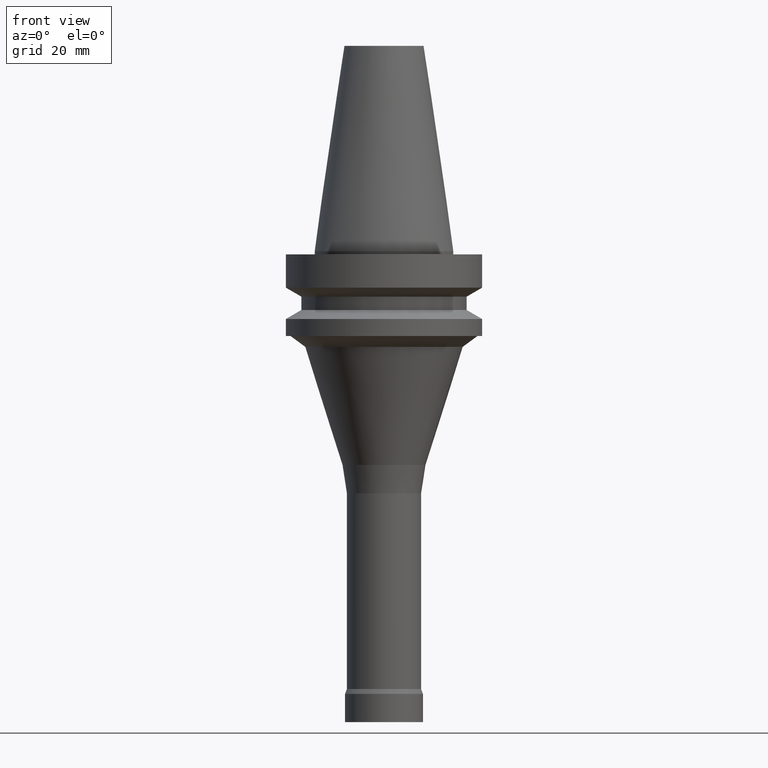
[diagram: clean part render]
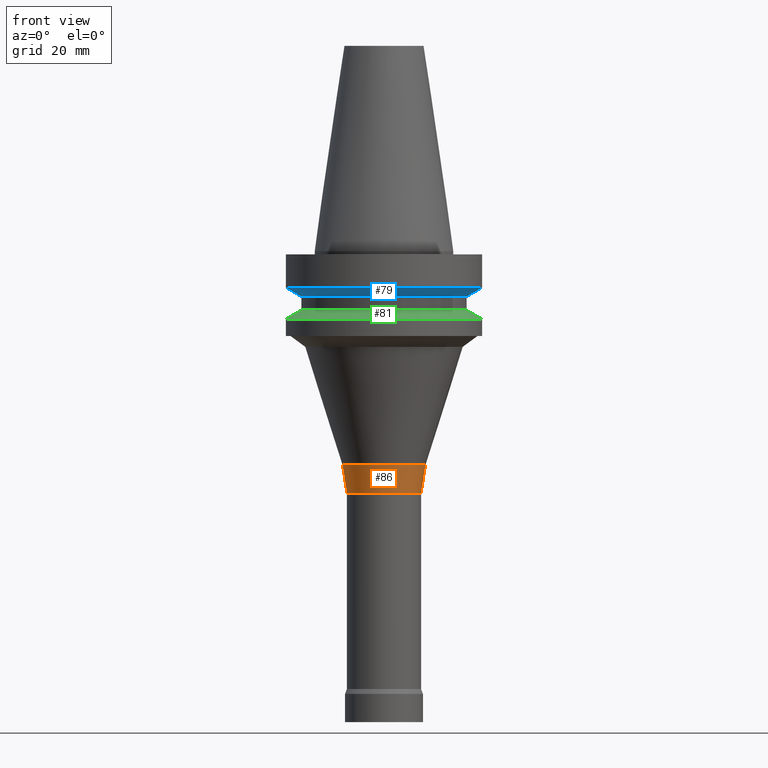
[diagram: same view with three faces highlighted in distinct colors, each labeled with its STEP entity id]
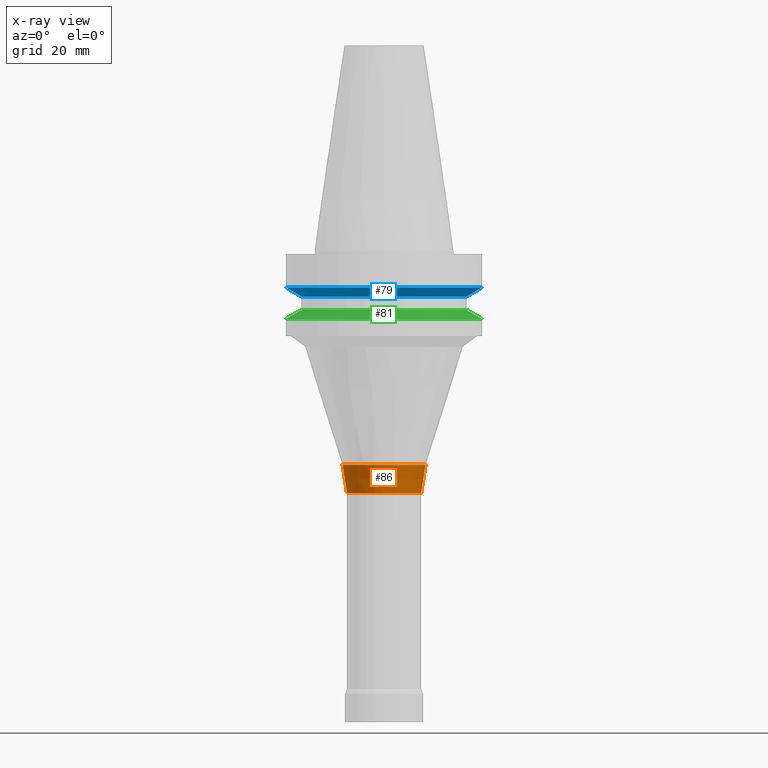
[diagram: x-ray of the same camera — body ghosted, the three highlighted faces saturated]
A machine part, front view with three faces highlighted in distinct colors.
The next image is the same camera in x-ray (body ghosted, the three faces saturated) — at least one of them is partly hidden behind the body in this view.
Their STEP definitions:

[orange] entity #86 — the highlighted conical surface has half-angle 8.804 deg.
#86=ADVANCED_FACE('',(#125,#126),#127,.T.);
#125=FACE_BOUND('',#174,.T.);
#126=FACE_BOUND('',#175,.T.);
#127=CONICAL_SURFACE('',#176,12.6028368312688,0.15366577651657);
#174=EDGE_LOOP('',(#245));
#175=EDGE_LOOP('',(#246));
#176=AXIS2_PLACEMENT_3D('',#247,#248,#249);
#245=ORIENTED_EDGE('',*,*,#286,.F.);
#246=ORIENTED_EDGE('',*,*,#285,.T.);
#247=CARTESIAN_POINT('',(4.4460104102601E-015,8.89202082052019E-015,-72.608860176756));
#248=DIRECTION('',(-6.12323399573677E-017,-1.22464679914735E-016,1.0));
#249=DIRECTION('',(-1.23259516440783E-032,1.0,1.22464679914735E-016));
#285=EDGE_CURVE('',#312,#312,#313,.T.);
#286=EDGE_CURVE('',#314,#314,#315,.T.);
#312=VERTEX_POINT('',#344);
#313=CIRCLE('',#345,13.3056736625376);
#314=VERTEX_POINT('',#346);
#315=CIRCLE('',#347,11.9);
#344=CARTESIAN_POINT('',(4.16815369558546E-015,13.3056736625376,-68.071115663512));
#345=AXIS2_PLACEMENT_3D('',#387,#388,#389);
#346=CARTESIAN_POINT('',(4.72386712493473E-015,11.9,-77.14660469));
#347=AXIS2_PLACEMENT_3D('',#390,#391,#392);
#387=CARTESIAN_POINT('',(4.16815369558546E-015,8.33630739117092E-015,-68.071115663512));
#388=DIRECTION('',(6.12323399573677E-017,1.22464679914735E-016,-1.0));
#389=DIRECTION('',(-1.23259516440783E-032,1.0,1.22464679914735E-016));
#390=CARTESIAN_POINT('',(4.72386712493473E-015,9.44773424986947E-015,-77.14660469));
#391=DIRECTION('',(6.12323399573677E-017,1.22464679914735E-016,-1.0));
#392=DIRECTION('',(-1.23259516440783E-032,1.0,1.22464679914735E-016));

[blue] entity #79 — the highlighted conical surface has half-angle 60 deg.
#79=ADVANCED_FACE('',(#104,#105),#106,.T.);
#104=FACE_BOUND('',#153,.T.);
#105=FACE_BOUND('',#154,.T.);
#106=CONICAL_SURFACE('',#155,29.0,1.04719755058882);
#153=EDGE_LOOP('',(#210));
#154=EDGE_LOOP('',(#211));
#155=AXIS2_PLACEMENT_3D('',#212,#213,#214);
#210=ORIENTED_EDGE('',*,*,#279,.F.);
#211=ORIENTED_EDGE('',*,*,#278,.T.);
#212=CARTESIAN_POINT('',(7.9867641352326E-016,1.59735282704652E-015,-13.043375675));
#213=DIRECTION('',(-6.12323399573677E-017,-1.22464679914735E-016,1.0));
#214=DIRECTION('',(-1.23259516440783E-032,1.0,1.22464679914735E-016));
#278=EDGE_CURVE('',#298,#298,#299,.T.);
#279=EDGE_CURVE('',#300,#300,#301,.T.);
#298=VERTEX_POINT('',#330);
#299=CIRCLE('',#331,31.5);
#300=VERTEX_POINT('',#332);
#301=CIRCLE('',#333,26.5);
#330=CARTESIAN_POINT('',(7.10295143505464E-016,31.5,-11.6));
#331=AXIS2_PLACEMENT_3D('',#366,#367,#368);
#332=CARTESIAN_POINT('',(8.87057683541055E-016,26.5,-14.48675135));
#333=AXIS2_PLACEMENT_3D('',#369,#370,#371);
#366=CARTESIAN_POINT('',(7.10295143505465E-016,1.42059028701093E-015,-11.6));
#367=DIRECTION('',(6.12323399573677E-017,1.22464679914735E-016,-1.0));
#368=DIRECTION('',(-1.23259516440783E-032,1.0,1.22464679914735E-016));
#369=CARTESIAN_POINT('',(8.87057683541055E-016,1.77411536708211E-015,-14.48675135));
#370=DIRECTION('',(6.12323399573677E-017,1.22464679914735E-016,-1.0));
#371=DIRECTION('',(-1.23259516440783E-032,1.0,1.22464679914735E-016));

[green] entity #81 — the highlighted conical surface has half-angle 60 deg.
#81=ADVANCED_FACE('',(#110,#111),#112,.T.);
#110=FACE_BOUND('',#159,.T.);
#111=FACE_BOUND('',#160,.T.);
#112=CONICAL_SURFACE('',#161,29.0,1.04719755058882);
#159=EDGE_LOOP('',(#220));
#160=EDGE_LOOP('',(#221));
#161=AXIS2_PLACEMENT_3D('',#222,#223,#224);
#220=ORIENTED_EDGE('',*,*,#281,.F.);
#221=ORIENTED_EDGE('',*,*,#280,.T.);
#222=CARTESIAN_POINT('',(1.23423727306135E-015,2.46847454612269E-015,-20.156624325));
#223=DIRECTION('',(6.12323399573677E-017,1.22464679914735E-016,-1.0));
#224=DIRECTION('',(-1.23259516440783E-032,1.0,1.22464679914735E-016));
#280=EDGE_CURVE('',#302,#302,#303,.T.);
#281=EDGE_CURVE('',#304,#304,#305,.T.);
#302=VERTEX_POINT('',#334);
#303=CIRCLE('',#335,26.5);
#304=VERTEX_POINT('',#336);
#305=CIRCLE('',#337,31.5);
#334=CARTESIAN_POINT('',(1.14585600304355E-015,26.5,-18.71324865));
#335=AXIS2_PLACEMENT_3D('',#372,#373,#374);
#336=CARTESIAN_POINT('',(1.32261854307914E-015,31.5,-21.6));
#337=AXIS2_PLACEMENT_3D('',#375,#376,#377);
#372=CARTESIAN_POINT('',(1.14585600304355E-015,2.2917120060871E-015,-18.71324865));
#373=DIRECTION('',(6.12323399573677E-017,1.22464679914735E-016,-1.0));
#374=DIRECTION('',(-1.23259516440783E-032,1.0,1.22464679914735E-016));
#375=CARTESIAN_POINT('',(1.32261854307914E-015,2.64523708615828E-015,-21.6));
#376=DIRECTION('',(6.12323399573677E-017,1.22464679914735E-016,-1.0));
#377=DIRECTION('',(-1.23259516440783E-032,1.0,1.22464679914735E-016));